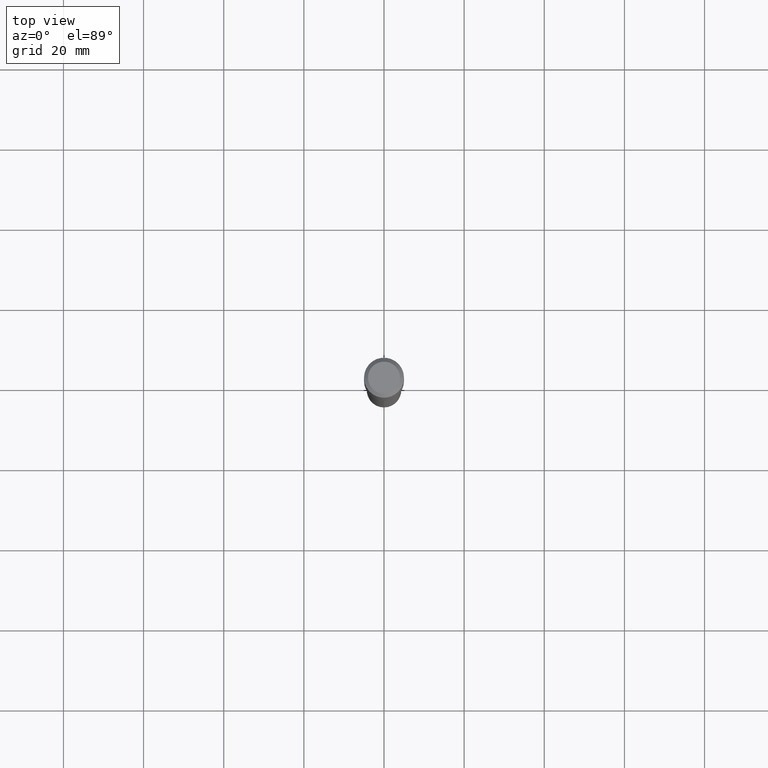
[diagram: clean part render]
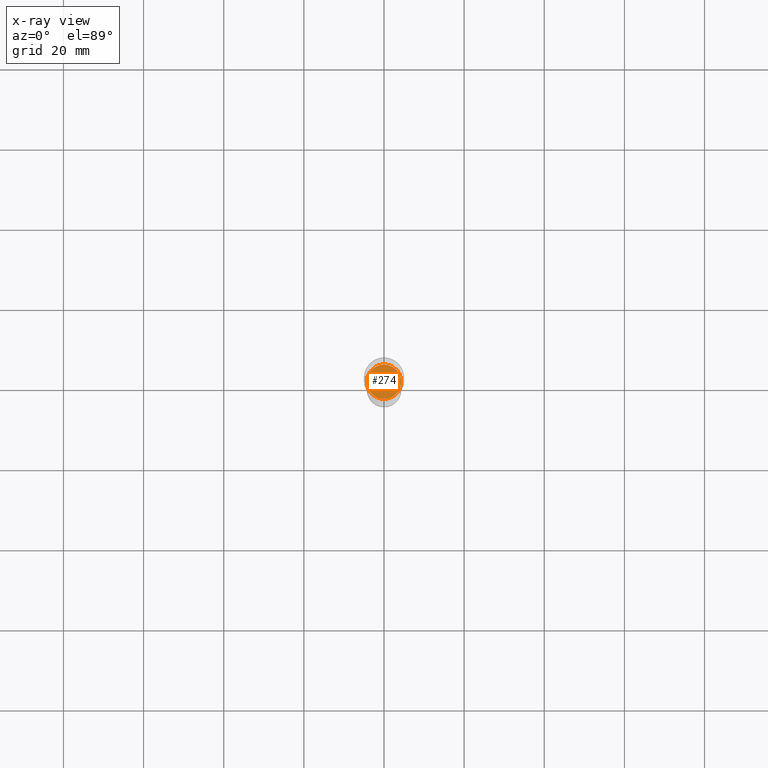
[diagram: x-ray — body ghosted, one internal face saturated and labeled with its STEP entity id]
A machine part, top view, then the same camera in x-ray: the body is ghosted and one INTERNAL B-rep face — a face not visible from any outside direction — is saturated and labeled: STEP entity #274.
In plain terms, the highlighted planar face has unit normal (-0, 0, 1).
Its self-contained STEP definition (entity closure, byte-faithful):
#1 = DIRECTION ( 'NONE',  ( 1.000000000000000000, -6.982962677686260400E-15, 0.000000000000000000 ) ) ;
#4 = AXIS2_PLACEMENT_3D ( 'NONE', #371, #470, #468 ) ;
#19 = EDGE_CURVE ( 'NONE', #31, #99, #120, .T. ) ;
#31 = VERTEX_POINT ( 'NONE', #162 ) ;
#45 = CIRCLE ( 'NONE', #4, 0.1688000000000000334 ) ;
#78 = EDGE_CURVE ( 'NONE', #99, #31, #45, .T. ) ;
#99 = VERTEX_POINT ( 'NONE', #202 ) ;
#105 = ORIENTED_EDGE ( 'NONE', *, *, #78, .F. ) ;
#115 = FACE_OUTER_BOUND ( 'NONE', #180, .T. ) ;
#120 = CIRCLE ( 'NONE', #219, 0.1688000000000000334 ) ;
#162 = CARTESIAN_POINT ( 'NONE',  ( 0.1688000000000000334, -9.411287948851692560E-15, -2.357899999999999441 ) ) ;
#170 = AXIS2_PLACEMENT_3D ( 'NONE', #419, #204, #370 ) ;
#180 = EDGE_LOOP ( 'NONE', ( #448, #105 ) ) ;
#202 = CARTESIAN_POINT ( 'NONE',  ( -0.1688000000000000334, -7.030518483721091580E-15, -2.357899999999999441 ) ) ;
#204 = DIRECTION ( 'NONE',  ( -2.438088387897960049E-29, 3.491481338843145188E-15, 1.000000000000000000 ) ) ;
#219 = AXIS2_PLACEMENT_3D ( 'NONE', #311, #349, #1 ) ;
#273 = PLANE ( 'NONE',  #170 ) ;
#274 = ADVANCED_FACE ( 'NONE', ( #115 ), #273, .F. ) ;
#311 = CARTESIAN_POINT ( 'NONE',  ( 5.766170898103932109E-29, -8.232563848858250751E-15, -2.357899999999999441 ) ) ;
#349 = DIRECTION ( 'NONE',  ( -2.445468806185136597E-29, 3.491481338843145583E-15, 1.000000000000000000 ) ) ;
#370 = DIRECTION ( 'NONE',  ( 1.000000000000000000, -6.982962677686265922E-15, 4.876176775795935793E-29 ) ) ;
#371 = CARTESIAN_POINT ( 'NONE',  ( 5.766170898103932109E-29, -8.232563848858250751E-15, -2.357899999999999441 ) ) ;
#419 = CARTESIAN_POINT ( 'NONE',  ( 5.766170898103932109E-29, -8.232563848858250751E-15, -2.357899999999999441 ) ) ;
#448 = ORIENTED_EDGE ( 'NONE', *, *, #19, .F. ) ;
#468 = DIRECTION ( 'NONE',  ( 1.000000000000000000, -6.982962677686260400E-15, 0.000000000000000000 ) ) ;
#470 = DIRECTION ( 'NONE',  ( -2.445468806185136597E-29, 3.491481338843145583E-15, 1.000000000000000000 ) ) ;